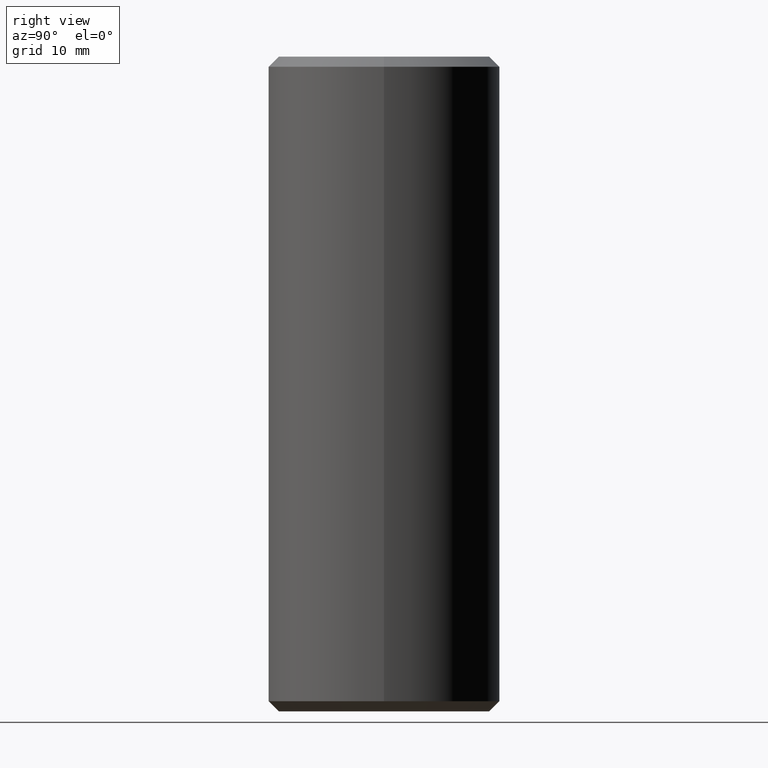
[diagram: clean part render]
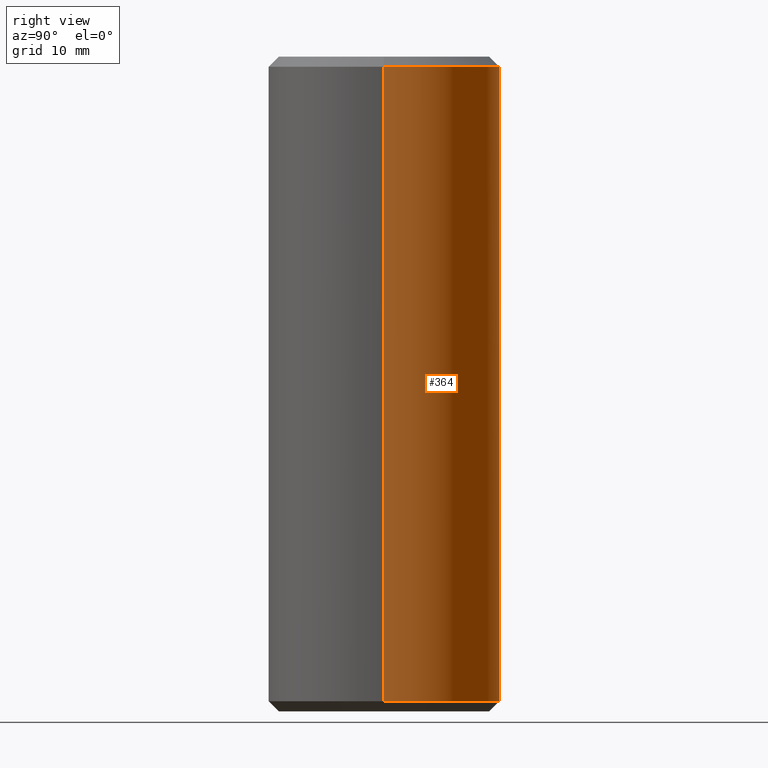
[diagram: same view with one face highlighted and labeled with its STEP entity id]
A machine part, right view. The second image highlights one B-rep face of the part: STEP entity #364.
In plain terms, the highlighted cylindrical surface (partial cylindrical patch) has radius 11.45 mm, axis along (-0, -0, -1).
Its self-contained STEP definition (entity closure, byte-faithful):
#6 = DIRECTION ( 'NONE',  ( 1.000000000000000000, 0.0000000000000000000, 0.0000000000000000000 ) ) ;
#61 = ORIENTED_EDGE ( 'NONE', *, *, #1966, .F. ) ;
#256 = CIRCLE ( 'NONE', #12414, 11.45000000000000100 ) ;
#364 = ADVANCED_FACE ( 'NONE', ( #1216 ), #9523, .T. ) ;
#677 = DIRECTION ( 'NONE',  ( -0.0000000000000000000, -0.0000000000000000000, -1.000000000000000000 ) ) ;
#1216 = FACE_OUTER_BOUND ( 'NONE', #5396, .T. ) ;
#1719 = DIRECTION ( 'NONE',  ( -1.000000000000000000, 0.0000000000000000000, 0.0000000000000000000 ) ) ;
#1966 = EDGE_CURVE ( 'NONE', #3391, #3839, #12122, .T. ) ;
#3258 = AXIS2_PLACEMENT_3D ( 'NONE', #4514, #677, #1719 ) ;
#3391 = VERTEX_POINT ( 'NONE', #7665 ) ;
#3551 = CARTESIAN_POINT ( 'NONE',  ( 11.45000000000000100, 1.402220585023719700E-015, 31.50000000000000700 ) ) ;
#3839 = VERTEX_POINT ( 'NONE', #6761 ) ;
#3915 = ORIENTED_EDGE ( 'NONE', *, *, #7174, .T. ) ;
#4514 = CARTESIAN_POINT ( 'NONE',  ( 0.0000000000000000000, 0.0000000000000000000, 32.50000000000000000 ) ) ;
#4704 = CIRCLE ( 'NONE', #6243, 11.45000000000000100 ) ;
#4751 = VERTEX_POINT ( 'NONE', #7236 ) ;
#4929 = EDGE_CURVE ( 'NONE', #10653, #4751, #11409, .T. ) ;
#5324 = ORIENTED_EDGE ( 'NONE', *, *, #10267, .T. ) ;
#5396 = EDGE_LOOP ( 'NONE', ( #5324, #9909, #3915, #61 ) ) ;
#6243 = AXIS2_PLACEMENT_3D ( 'NONE', #12432, #11522, #6 ) ;
#6673 = DIRECTION ( 'NONE',  ( -0.0000000000000000000, -0.0000000000000000000, -1.000000000000000000 ) ) ;
#6761 = CARTESIAN_POINT ( 'NONE',  ( -11.45000000000000100, 0.0000000000000000000, -31.50000000000000000 ) ) ;
#6791 = VECTOR ( 'NONE', #6673, 1000.000000000000000 ) ;
#7174 = EDGE_CURVE ( 'NONE', #4751, #3839, #256, .T. ) ;
#7236 = CARTESIAN_POINT ( 'NONE',  ( 11.45000000000000100, 1.402220585023719700E-015, -31.50000000000000000 ) ) ;
#7665 = CARTESIAN_POINT ( 'NONE',  ( -11.45000000000000100, 0.0000000000000000000, 31.50000000000000700 ) ) ;
#8396 = VECTOR ( 'NONE', #9133, 1000.000000000000000 ) ;
#8427 = DIRECTION ( 'NONE',  ( 1.000000000000000000, 0.0000000000000000000, 0.0000000000000000000 ) ) ;
#9133 = DIRECTION ( 'NONE',  ( -0.0000000000000000000, -0.0000000000000000000, -1.000000000000000000 ) ) ;
#9466 = CARTESIAN_POINT ( 'NONE',  ( 0.0000000000000000000, 0.0000000000000000000, -31.50000000000000000 ) ) ;
#9523 = CYLINDRICAL_SURFACE ( 'NONE', #3258, 11.45000000000000100 ) ;
#9909 = ORIENTED_EDGE ( 'NONE', *, *, #4929, .T. ) ;
#9911 = CARTESIAN_POINT ( 'NONE',  ( -11.45000000000000100, 0.0000000000000000000, 32.50000000000000000 ) ) ;
#10267 = EDGE_CURVE ( 'NONE', #3391, #10653, #4704, .T. ) ;
#10459 = CARTESIAN_POINT ( 'NONE',  ( 11.45000000000000100, 1.402220585023719700E-015, 32.50000000000000000 ) ) ;
#10653 = VERTEX_POINT ( 'NONE', #3551 ) ;
#11409 = LINE ( 'NONE', #10459, #6791 ) ;
#11413 = DIRECTION ( 'NONE',  ( -0.0000000000000000000, -0.0000000000000000000, 1.000000000000000000 ) ) ;
#11522 = DIRECTION ( 'NONE',  ( 0.0000000000000000000, 0.0000000000000000000, -1.000000000000000000 ) ) ;
#12122 = LINE ( 'NONE', #9911, #8396 ) ;
#12414 = AXIS2_PLACEMENT_3D ( 'NONE', #9466, #11413, #8427 ) ;
#12432 = CARTESIAN_POINT ( 'NONE',  ( 0.0000000000000000000, 0.0000000000000000000, 31.50000000000000700 ) ) ;